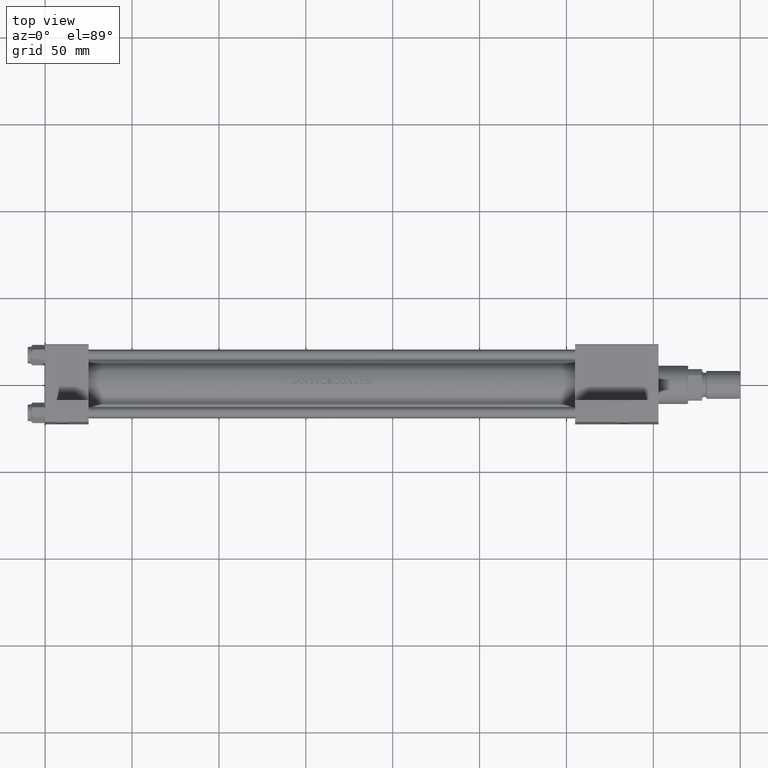
[diagram: clean part render]
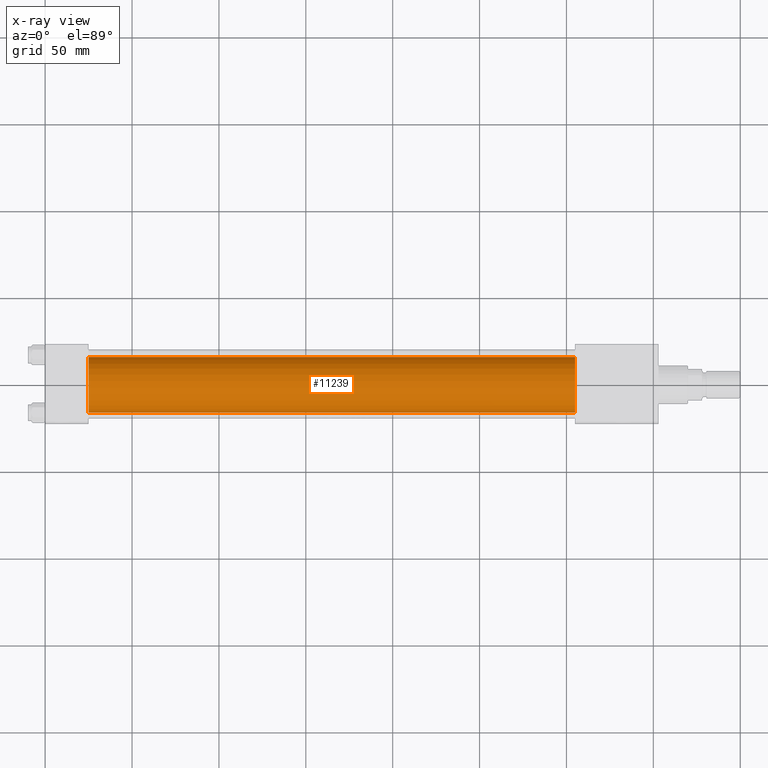
[diagram: x-ray — body ghosted, one internal face saturated and labeled with its STEP entity id]
A machine part, top view, then the same camera in x-ray: the body is ghosted and one INTERNAL B-rep face — a face not visible from any outside direction — is saturated and labeled: STEP entity #11239.
In plain terms, the highlighted cylindrical surface (edge-blend (fillet) strip) has radius 16 mm, axis along (-1, -0, 0).
Its self-contained STEP definition (entity closure, byte-faithful):
#1185 = CARTESIAN_POINT ( 'NONE',  ( 25.00000000000000000, 0.000000000000000000, 15.50000000000000355 ) ) ;
#1485 = ORIENTED_EDGE ( 'NONE', *, *, #38617, .T. ) ;
#1569 = CARTESIAN_POINT ( 'NONE',  ( 305.0000000000000568, 1.959434878635765131E-15, -16.49999999999999645 ) ) ;
#1722 = ORIENTED_EDGE ( 'NONE', *, *, #7639, .T. ) ;
#1774 = ORIENTED_EDGE ( 'NONE', *, *, #47142, .F. ) ;
#2067 = DIRECTION ( 'NONE',  ( 1.000000000000000000, 0.000000000000000000, 0.000000000000000000 ) ) ;
#2102 = VERTEX_POINT ( 'NONE', #33447 ) ;
#3602 = DIRECTION ( 'NONE',  ( 0.000000000000000000, 0.000000000000000000, 1.000000000000000000 ) ) ;
#4980 = LINE ( 'NONE', #1569, #20505 ) ;
#5031 = AXIS2_PLACEMENT_3D ( 'NONE', #14067, #33488, #3602 ) ;
#7639 = EDGE_CURVE ( 'NONE', #40431, #2102, #46938, .T. ) ;
#10061 = DIRECTION ( 'NONE',  ( 1.000000000000000000, 0.000000000000000000, 0.000000000000000000 ) ) ;
#10500 = EDGE_LOOP ( 'NONE', ( #1722, #1485, #1774, #26617 ) ) ;
#10658 = CYLINDRICAL_SURFACE ( 'NONE', #5031, 16.00000000000000000 ) ;
#11239 = ADVANCED_FACE ( 'NONE', ( #40797 ), #10658, .F. ) ;
#14067 = CARTESIAN_POINT ( 'NONE',  ( 305.0000000000000568, 0.000000000000000000, -0.4999999999999970024 ) ) ;
#17134 = CARTESIAN_POINT ( 'NONE',  ( 305.0000000000000568, 0.000000000000000000, -0.4999999999999970024 ) ) ;
#18204 = AXIS2_PLACEMENT_3D ( 'NONE', #46996, #10061, #24891 ) ;
#20058 = DIRECTION ( 'NONE',  ( -1.000000000000000000, -0.000000000000000000, -0.000000000000000000 ) ) ;
#20505 = VECTOR ( 'NONE', #20058, 1000.000000000000000 ) ;
#22179 = VERTEX_POINT ( 'NONE', #1185 ) ;
#24891 = DIRECTION ( 'NONE',  ( 0.000000000000000000, 0.000000000000000000, -1.000000000000000000 ) ) ;
#26248 = DIRECTION ( 'NONE',  ( -1.000000000000000000, -0.000000000000000000, -0.000000000000000000 ) ) ;
#26617 = ORIENTED_EDGE ( 'NONE', *, *, #44393, .F. ) ;
#27980 = LINE ( 'NONE', #42775, #46021 ) ;
#28250 = VERTEX_POINT ( 'NONE', #36271 ) ;
#29786 = CIRCLE ( 'NONE', #18204, 16.00000000000000000 ) ;
#33447 = CARTESIAN_POINT ( 'NONE',  ( 305.0000000000000568, 1.959434878635765131E-15, -16.49999999999999645 ) ) ;
#33488 = DIRECTION ( 'NONE',  ( -1.000000000000000000, -0.000000000000000000, -0.000000000000000000 ) ) ;
#36243 = CARTESIAN_POINT ( 'NONE',  ( 305.0000000000000568, 0.000000000000000000, 15.50000000000000355 ) ) ;
#36271 = CARTESIAN_POINT ( 'NONE',  ( 25.00000000000000000, 1.959434878635765131E-15, -16.49999999999999645 ) ) ;
#38521 = DIRECTION ( 'NONE',  ( 0.000000000000000000, 0.000000000000000000, -1.000000000000000000 ) ) ;
#38617 = EDGE_CURVE ( 'NONE', #2102, #28250, #4980, .T. ) ;
#40431 = VERTEX_POINT ( 'NONE', #36243 ) ;
#40797 = FACE_OUTER_BOUND ( 'NONE', #10500, .T. ) ;
#42775 = CARTESIAN_POINT ( 'NONE',  ( 305.0000000000000568, 0.000000000000000000, 15.50000000000000355 ) ) ;
#44393 = EDGE_CURVE ( 'NONE', #40431, #22179, #27980, .T. ) ;
#46021 = VECTOR ( 'NONE', #26248, 1000.000000000000000 ) ;
#46151 = AXIS2_PLACEMENT_3D ( 'NONE', #17134, #2067, #38521 ) ;
#46938 = CIRCLE ( 'NONE', #46151, 16.00000000000000000 ) ;
#46996 = CARTESIAN_POINT ( 'NONE',  ( 25.00000000000000000, 0.000000000000000000, -0.4999999999999970024 ) ) ;
#47142 = EDGE_CURVE ( 'NONE', #22179, #28250, #29786, .T. ) ;